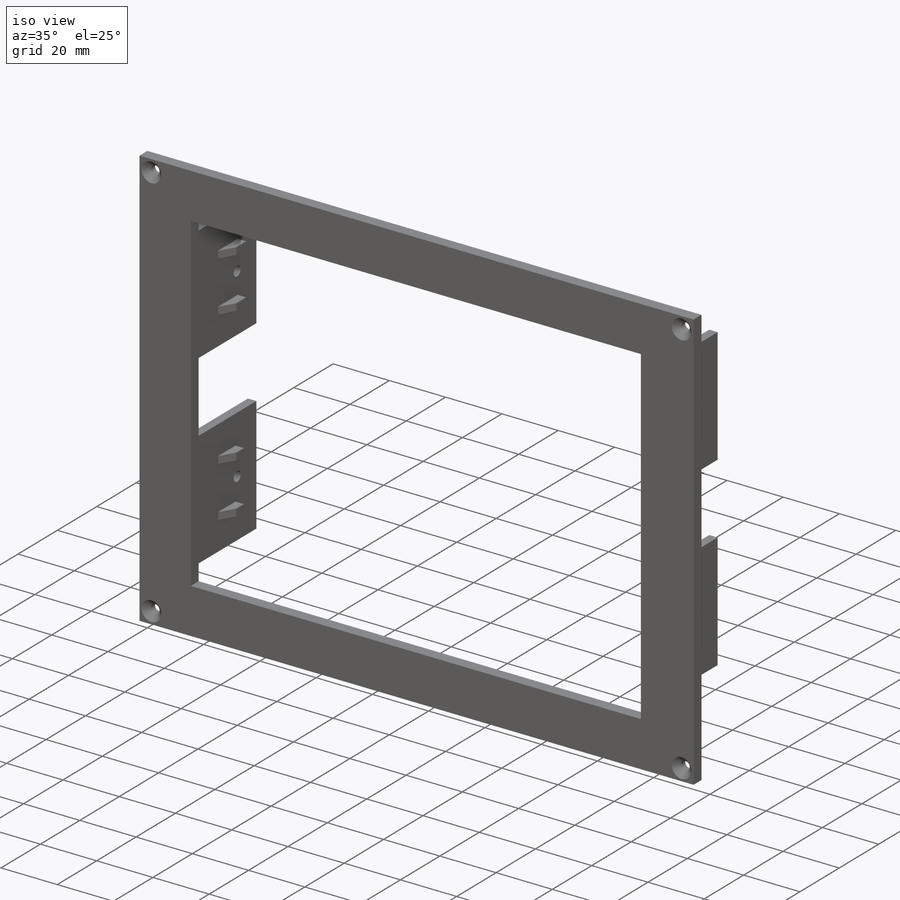
[diagram: iso view]
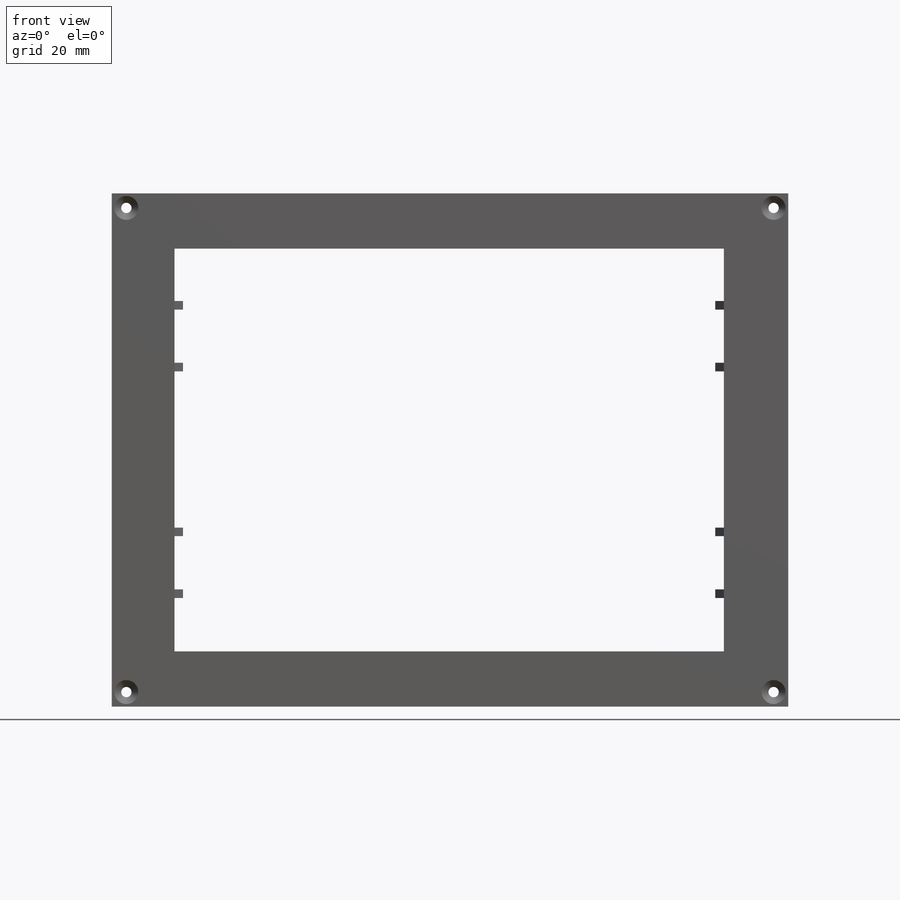
[diagram: front view]
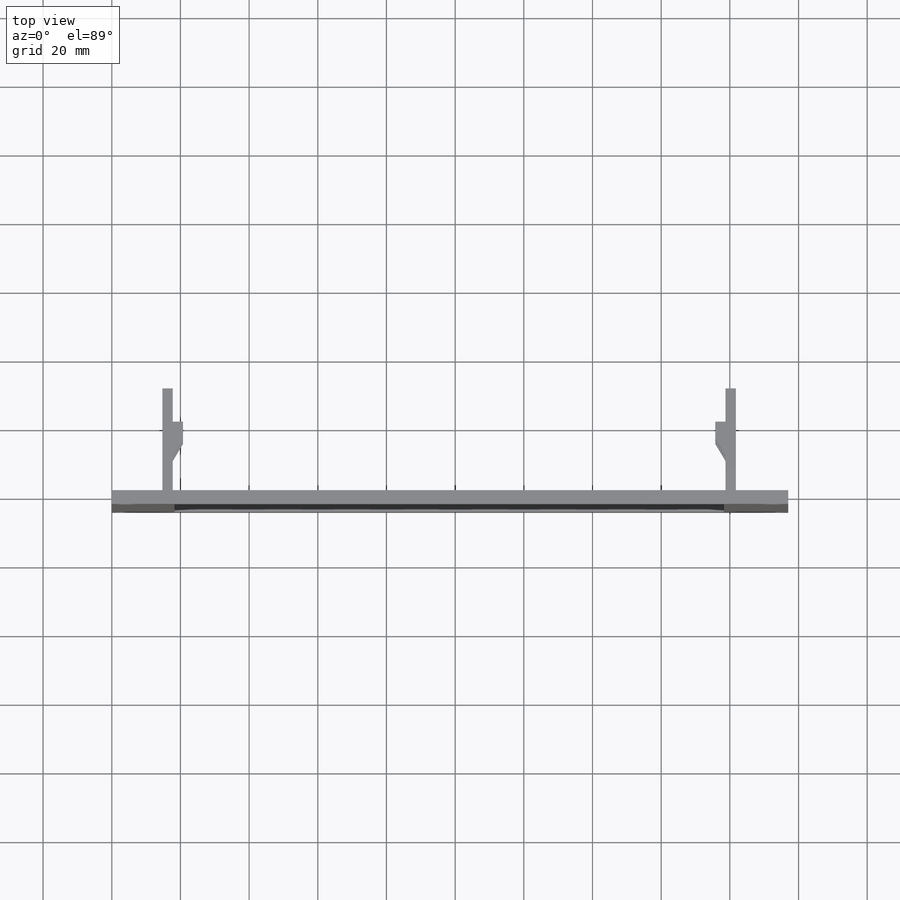
[diagram: top view]
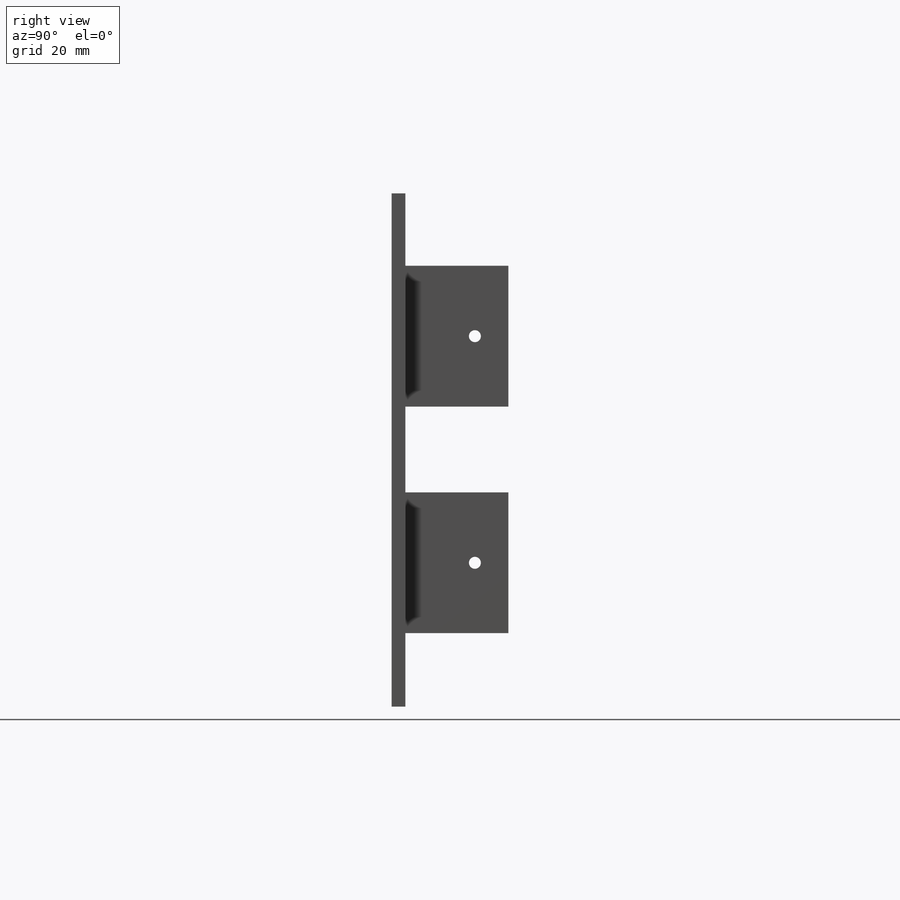
[diagram: right view]
SOLIDWORKS PART (.sldprt)
format: sldprt  version: not decoded by parser v0  size: 773,120 bytes
history: native  units: mm
features: sketch x7, extrude x4, plane x3, cut_extrude x3, chamfer x2, material x1 (+10 scaffold rows collapsed)
feature tree (30):
  scaffold x10  (default folders/planes/origin — collapsed)
  material  "Matériau <non spécifié>"
  plane  "Plan de face"
  plane  "Plan de dessus"
  plane  "Plan de droite"
  sketch  "Esquisse1"  dims[D1=197.0mm D2=149.5mm]
  extrude  "Boss.-Extru.1"  Depth=4mm
  sketch  "Esquisse3"  dims[D1=3.0mm D10=3.0mm D11=3.0mm D12=3.0mm D2=4.25mm D3=4.25mm D4=4.25mm D5=4.25mm D6=4.25mm D7=4.25mm D8=4.25mm D9=4.25mm]
  cut_extrude  "Enlèv. mat.-Extru.2"  Depth=4mm
  chamfer  "Chanfrein1"  Distance=2mm Angle=45deg
  sketch  "Esquisse4"  dims[D1=117.3mm D2=160.0mm D3=16.1mm D4=16.1mm D5=18.25mm D6=18.75mm]
  cut_extrude  "Enlèv. mat.-Extru.3"  Depth=10mm
  sketch  "Esquisse5"  dims[c1.D1=2.0mm c1.D2=2.0mm c1.D3=2.0mm c2.D1=41.0mm c2.D2=3.0mm c2.D3=5.0mm c2.D4=3.0mm c2.D5=41.0mm c2.D6=5.3mm c2.D7=0.5mm c2.D8=0.5mm c2.D9=3.0mm c2.D10=3.0mm c2.D11=0.5mm c2.D12=0.5mm c2.D13=5.3mm c2.D14=41.0mm c2.D15=41.0mm c2.D16=5.0mm]
  extrude  "Boss.-Extru.2"  Depth=30mm
  sketch  "Esquisse6"  dims[D1=10.25mm D2=10.25mm D3=2.5mm D4=2.5mm D5=10.5mm D6=10.5mm D7=10.0mm D8=10.0mm D9=2.5mm D10=2.5mm D11=10.5mm D12=10.5mm D13=10.25mm D14=10.25mm D15=2.5mm D16=2.5mm D17=10.25mm]
  extrude  "Boss.-Extru.3"  Depth=3mm
  sketch  "Esquisse7"  dims[D1=2.5mm D2=2.5mm D3=2.5mm D4=2.5mm D5=10.25mm D6=10.25mm D7=10.25mm D8=10.25mm D9=10.5mm D10=10.5mm D11=10.5mm D12=10.5mm D13=10.0mm D14=10.0mm D15=10.0mm D16=10.0mm]
  extrude  "Boss.-Extru.4"  Depth=3mm
  chamfer  "Chanfrein2"  Distance=3mm
  sketch  "Esquisse8"  dims[D1=3.5mm D5=3.5mm D2=20.5mm D3=20.5mm D4=9.75mm D6=20.5mm D7=9.75mm]
  cut_extrude  "Enlèv. mat.-Extru.4"  Depth=210mm
decode coverage: 16 of 16 modeling features carry decoded parameters
note: suppression state not decoded; provenance and decode notes live in map.json
